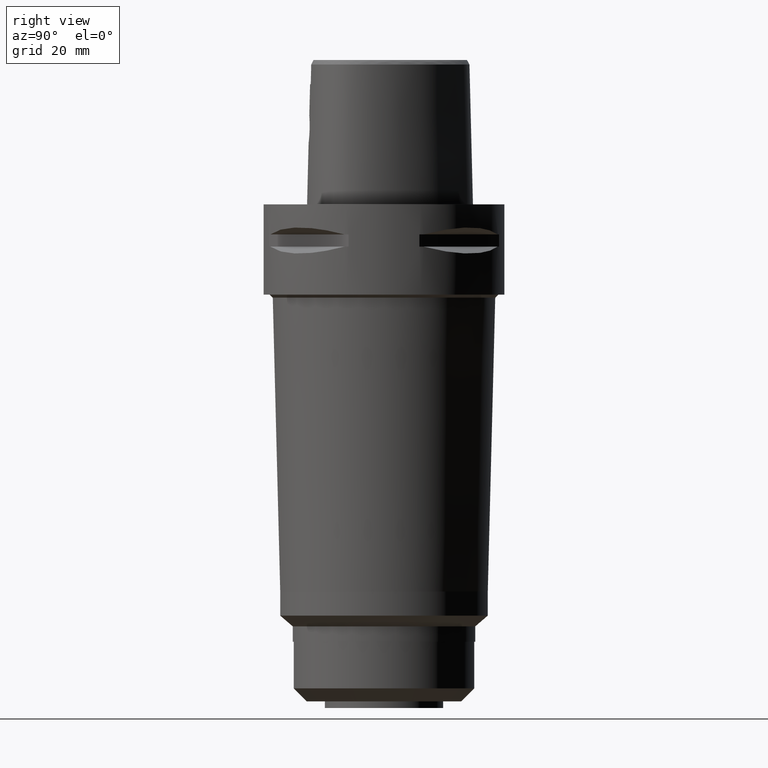
[diagram: clean part render]
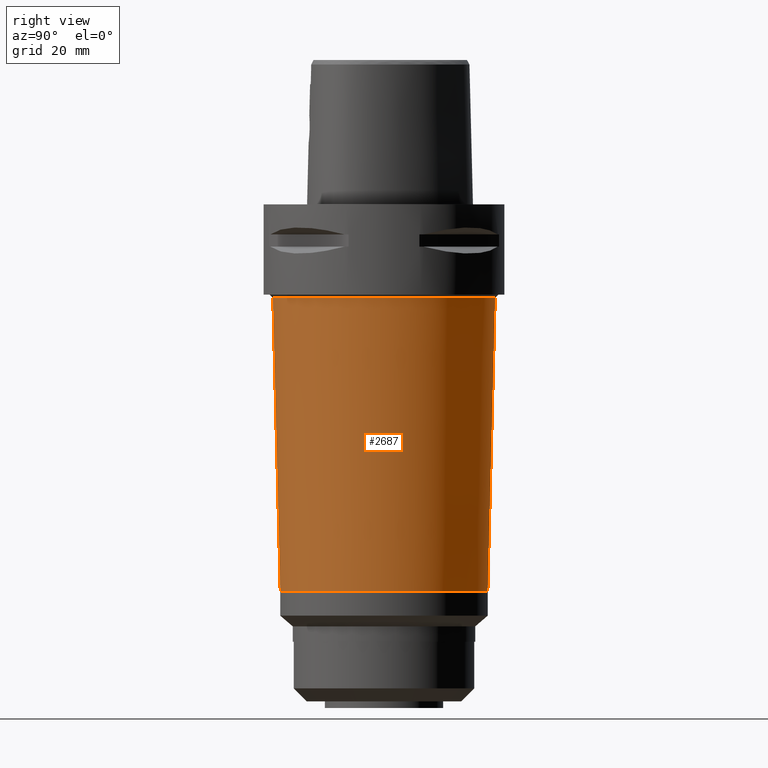
[diagram: same view with one face highlighted and labeled with its STEP entity id]
A machine part, right view. The second image highlights one B-rep face of the part: STEP entity #2687.
In plain terms, the highlighted conical surface has half-angle 1.451 deg.
Its self-contained STEP definition (entity closure, byte-faithful):
#542=DIRECTION('',(0.E0,-2.532202056543E-2,-9.996793462278E-1));
#543=VECTOR('',#542,9.773133792216E1);
#544=CARTESIAN_POINT('',(0.E0,3.697475494875E1,-3.1E1));
#545=LINE('',#544,#543);
#549=CARTESIAN_POINT('',(0.E0,0.E0,-1.287E2));
#550=DIRECTION('',(0.E0,0.E0,-1.E0));
#551=DIRECTION('',(0.E0,1.E0,0.E0));
#552=AXIS2_PLACEMENT_3D('',#549,#550,#551);
#557=CARTESIAN_POINT('',(0.E0,0.E0,-3.1E1));
#558=DIRECTION('',(0.E0,0.E0,1.E0));
#559=DIRECTION('',(0.E0,-1.E0,0.E0));
#560=AXIS2_PLACEMENT_3D('',#557,#558,#559);
#565=DIRECTION('',(0.E0,2.532202056543E-2,-9.996793462278E-1));
#566=VECTOR('',#565,9.773133792216E1);
#567=CARTESIAN_POINT('',(0.E0,-3.697475494875E1,-3.1E1));
#568=LINE('',#567,#566);
#1679=CARTESIAN_POINT('',(0.E0,3.697475494875E1,-3.1E1));
#1680=VERTEX_POINT('',#1679);
#1681=CARTESIAN_POINT('',(0.E0,-3.697475494875E1,-3.1E1));
#1682=VERTEX_POINT('',#1681);
#1683=CARTESIAN_POINT('',(0.E0,3.45E1,-1.287E2));
#1684=VERTEX_POINT('',#1683);
#1685=CARTESIAN_POINT('',(0.E0,-3.45E1,-1.287E2));
#1686=VERTEX_POINT('',#1685);
#2673=CARTESIAN_POINT('',(0.E0,0.E0,-7.985E1));
#2674=DIRECTION('',(0.E0,0.E0,1.E0));
#2675=DIRECTION('',(0.E0,1.E0,0.E0));
#2676=AXIS2_PLACEMENT_3D('',#2673,#2674,#2675);
#2677=CONICAL_SURFACE('',#2676,3.573737747438E1,1.451E0);
#2679=ORIENTED_EDGE('',*,*,#2678,.T.);
#2681=ORIENTED_EDGE('',*,*,#2680,.T.);
#2683=ORIENTED_EDGE('',*,*,#2682,.F.);
#2684=ORIENTED_EDGE('',*,*,#2666,.T.);
#2685=EDGE_LOOP('',(#2679,#2681,#2683,#2684));
#2686=FACE_OUTER_BOUND('',#2685,.F.);
#553=CIRCLE('',#552,3.45E1);
#561=CIRCLE('',#560,3.697475494876E1);
#2666=EDGE_CURVE('',#1682,#1680,#561,.T.);
#2678=EDGE_CURVE('',#1680,#1684,#545,.T.);
#2680=EDGE_CURVE('',#1684,#1686,#553,.T.);
#2682=EDGE_CURVE('',#1682,#1686,#568,.T.);
#2687=ADVANCED_FACE('',(#2686),#2677,.T.);